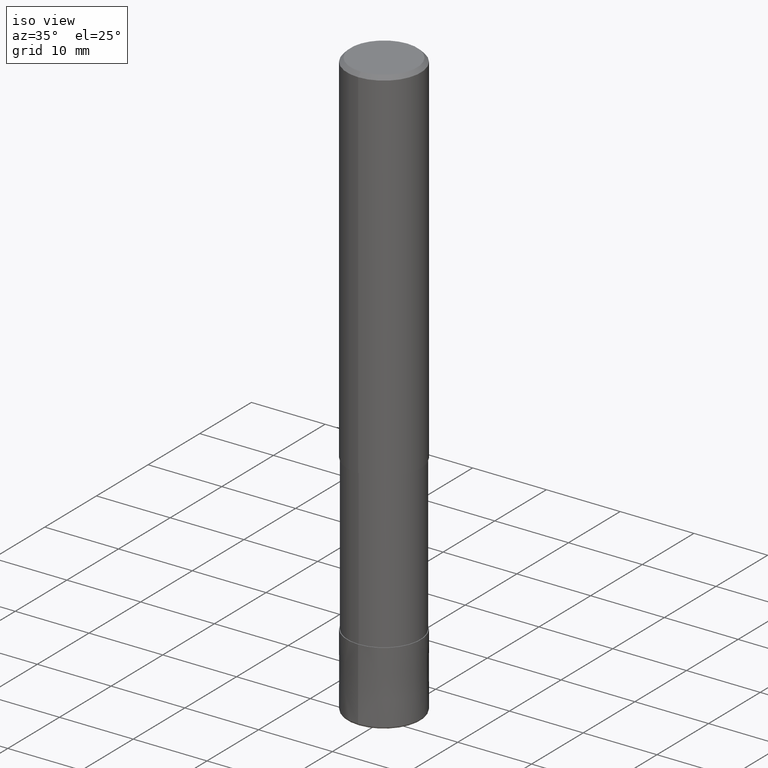
[diagram: clean part render]
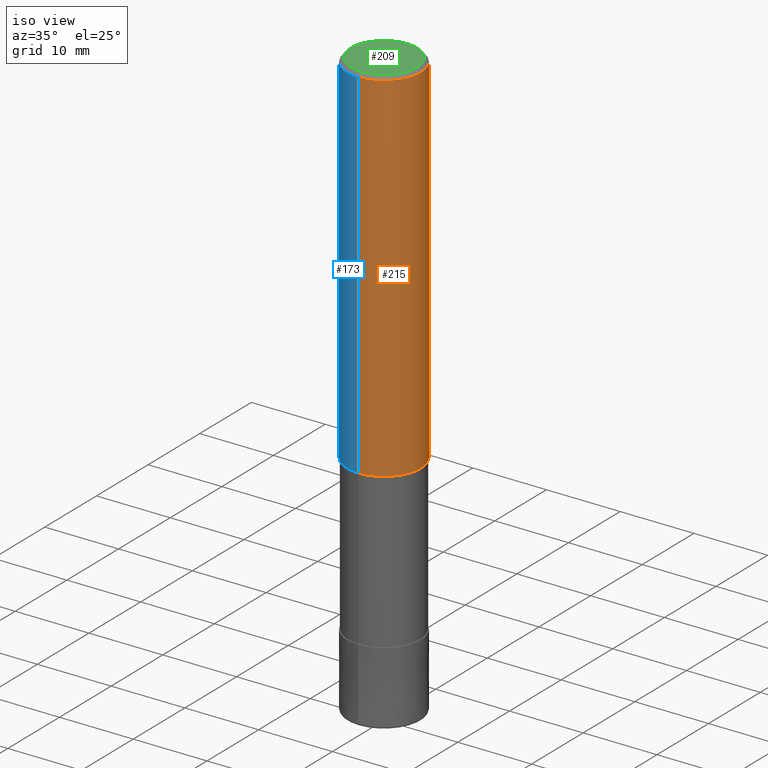
[diagram: same view with three faces highlighted in distinct colors, each labeled with its STEP entity id]
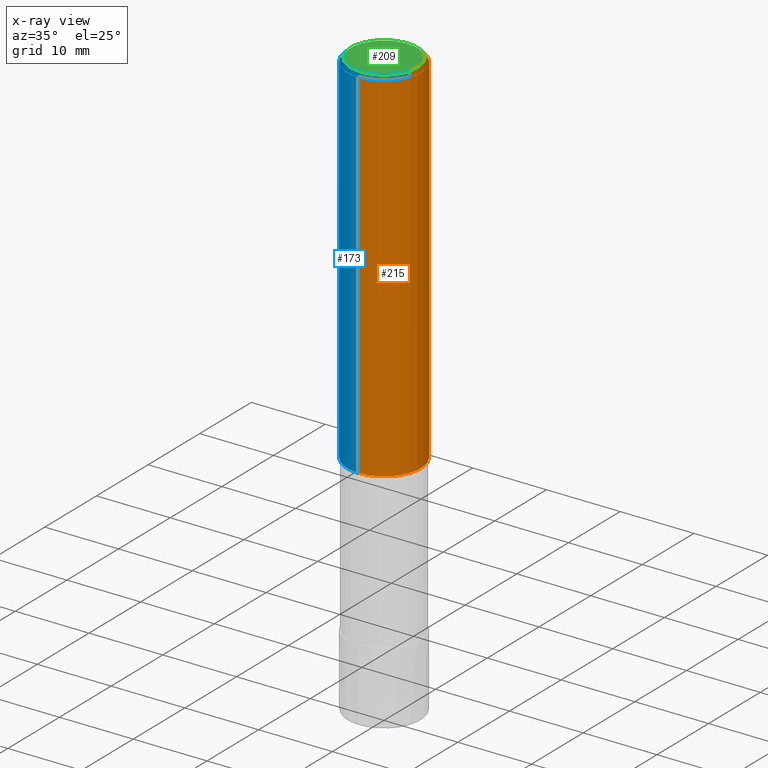
[diagram: x-ray of the same camera — body ghosted, the three highlighted faces saturated]
A machine part, iso view with three faces highlighted in distinct colors.
The next image is the same camera in x-ray (body ghosted, the three faces saturated) — at least one of them is partly hidden behind the body in this view.
Their STEP definitions:

[orange] entity #215 — the highlighted cylindrical surface (partial cylindrical patch) has radius 5 mm, axis along (-0, -0, 1).
#117=EDGE_CURVE('',#243,#143,#304,.T.);
#123=VERTEX_POINT('',#313);
#143=VERTEX_POINT('',#338);
#157=VERTEX_POINT('',#355);
#177=EDGE_CURVE('',#123,#157,#378,.T.);
#191=EDGE_CURVE('',#143,#157,#393,.T.);
#215=ADVANCED_FACE('',(#422),#423,.T.);
#243=VERTEX_POINT('',#452);
#253=EDGE_CURVE('',#123,#243,#463,.T.);
#304=CIRCLE('',#508,5.0);
#313=CARTESIAN_POINT('',(0.0,5.0,-0.5));
#338=CARTESIAN_POINT('',(6.12303176911189E-016,-5.0,-49.0));
#355=CARTESIAN_POINT('',(6.12303176911189E-016,-5.0,-0.5));
#378=CIRCLE('',#596,5.0);
#393=LINE('',#615,#616);
#422=FACE_OUTER_BOUND('',#651,.T.);
#423=CYLINDRICAL_SURFACE('',#652,5.0);
#452=CARTESIAN_POINT('',(0.0,5.0,-49.0));
#463=LINE('',#704,#705);
#508=AXIS2_PLACEMENT_3D('',#747,#748,#749);
#596=AXIS2_PLACEMENT_3D('',#850,#851,#852);
#615=CARTESIAN_POINT('',(6.12303176911189E-016,-5.0,-24.75));
#616=VECTOR('',#865,1.0);
#651=EDGE_LOOP('',(#905,#906,#907,#908));
#652=AXIS2_PLACEMENT_3D('',#909,#910,#911);
#704=CARTESIAN_POINT('',(-6.12303176911189E-016,5.0,-24.75));
#705=VECTOR('',#960,1.0);
#747=CARTESIAN_POINT('',(0.0,0.0,-49.0));
#748=DIRECTION('',(0.0,0.0,-1.0));
#749=DIRECTION('',(0.0,1.0,0.0));
#850=CARTESIAN_POINT('',(0.0,0.0,-0.5));
#851=DIRECTION('',(0.0,0.0,-1.0));
#852=DIRECTION('',(0.0,1.0,0.0));
#865=DIRECTION('',(-0.0,-0.0,1.0));
#905=ORIENTED_EDGE('',*,*,#253,.F.);
#906=ORIENTED_EDGE('',*,*,#177,.T.);
#907=ORIENTED_EDGE('',*,*,#191,.F.);
#908=ORIENTED_EDGE('',*,*,#117,.F.);
#909=CARTESIAN_POINT('',(0.0,0.0,-24.75));
#910=DIRECTION('',(-0.0,-0.0,1.0));
#911=DIRECTION('',(0.0,1.0,0.0));
#960=DIRECTION('',(0.0,0.0,-1.0));

[blue] entity #173 — the highlighted cylindrical surface (partial cylindrical patch) has radius 5 mm, axis along (-0, -0, 1).
#123=VERTEX_POINT('',#313);
#143=VERTEX_POINT('',#338);
#157=VERTEX_POINT('',#355);
#173=ADVANCED_FACE('',(#373),#374,.T.);
#191=EDGE_CURVE('',#143,#157,#393,.T.);
#223=EDGE_CURVE('',#143,#243,#431,.T.);
#243=VERTEX_POINT('',#452);
#253=EDGE_CURVE('',#123,#243,#463,.T.);
#277=EDGE_CURVE('',#157,#123,#488,.T.);
#313=CARTESIAN_POINT('',(0.0,5.0,-0.5));
#338=CARTESIAN_POINT('',(6.12303176911189E-016,-5.0,-49.0));
#355=CARTESIAN_POINT('',(6.12303176911189E-016,-5.0,-0.5));
#373=FACE_OUTER_BOUND('',#589,.T.);
#374=CYLINDRICAL_SURFACE('',#590,5.0);
#393=LINE('',#615,#616);
#431=CIRCLE('',#663,5.0);
#452=CARTESIAN_POINT('',(0.0,5.0,-49.0));
#463=LINE('',#704,#705);
#488=CIRCLE('',#737,5.0);
#589=EDGE_LOOP('',(#840,#841,#842,#843));
#590=AXIS2_PLACEMENT_3D('',#844,#845,#846);
#615=CARTESIAN_POINT('',(6.12303176911189E-016,-5.0,-24.75));
#616=VECTOR('',#865,1.0);
#663=AXIS2_PLACEMENT_3D('',#918,#919,#920);
#704=CARTESIAN_POINT('',(-6.12303176911189E-016,5.0,-24.75));
#705=VECTOR('',#960,1.0);
#737=AXIS2_PLACEMENT_3D('',#986,#987,#988);
#840=ORIENTED_EDGE('',*,*,#253,.T.);
#841=ORIENTED_EDGE('',*,*,#223,.F.);
#842=ORIENTED_EDGE('',*,*,#191,.T.);
#843=ORIENTED_EDGE('',*,*,#277,.T.);
#844=CARTESIAN_POINT('',(0.0,0.0,-24.75));
#845=DIRECTION('',(-0.0,-0.0,1.0));
#846=DIRECTION('',(0.0,1.0,0.0));
#865=DIRECTION('',(-0.0,-0.0,1.0));
#918=CARTESIAN_POINT('',(0.0,0.0,-49.0));
#919=DIRECTION('',(0.0,0.0,-1.0));
#920=DIRECTION('',(0.0,1.0,0.0));
#960=DIRECTION('',(0.0,0.0,-1.0));
#986=CARTESIAN_POINT('',(0.0,0.0,-0.5));
#987=DIRECTION('',(0.0,0.0,-1.0));
#988=DIRECTION('',(0.0,1.0,0.0));

[green] entity #209 — the highlighted planar face has unit normal (-0, 0, 1).
#127=EDGE_CURVE('',#187,#275,#318,.T.);
#185=EDGE_CURVE('',#275,#187,#386,.T.);
#187=VERTEX_POINT('',#388);
#209=ADVANCED_FACE('',(#413),#414,.T.);
#275=VERTEX_POINT('',#486);
#318=CIRCLE('',#523,4.5);
#386=CIRCLE('',#607,4.5);
#388=CARTESIAN_POINT('',(5.5107285922007E-016,-4.5,0.0));
#413=FACE_OUTER_BOUND('',#642,.T.);
#414=PLANE('',#643);
#486=CARTESIAN_POINT('',(0.0,4.5,0.0));
#523=AXIS2_PLACEMENT_3D('',#774,#775,#776);
#607=AXIS2_PLACEMENT_3D('',#854,#855,#856);
#642=EDGE_LOOP('',(#891,#892));
#643=AXIS2_PLACEMENT_3D('',#893,#894,#895);
#774=CARTESIAN_POINT('',(0.0,0.0,0.0));
#775=DIRECTION('',(0.0,0.0,-1.0));
#776=DIRECTION('',(0.0,1.0,0.0));
#854=CARTESIAN_POINT('',(0.0,0.0,0.0));
#855=DIRECTION('',(0.0,0.0,-1.0));
#856=DIRECTION('',(0.0,1.0,0.0));
#891=ORIENTED_EDGE('',*,*,#185,.F.);
#892=ORIENTED_EDGE('',*,*,#127,.F.);
#893=CARTESIAN_POINT('',(0.0,2.25,0.0));
#894=DIRECTION('',(-0.0,0.0,1.0));
#895=DIRECTION('',(0.0,-1.0,0.0));